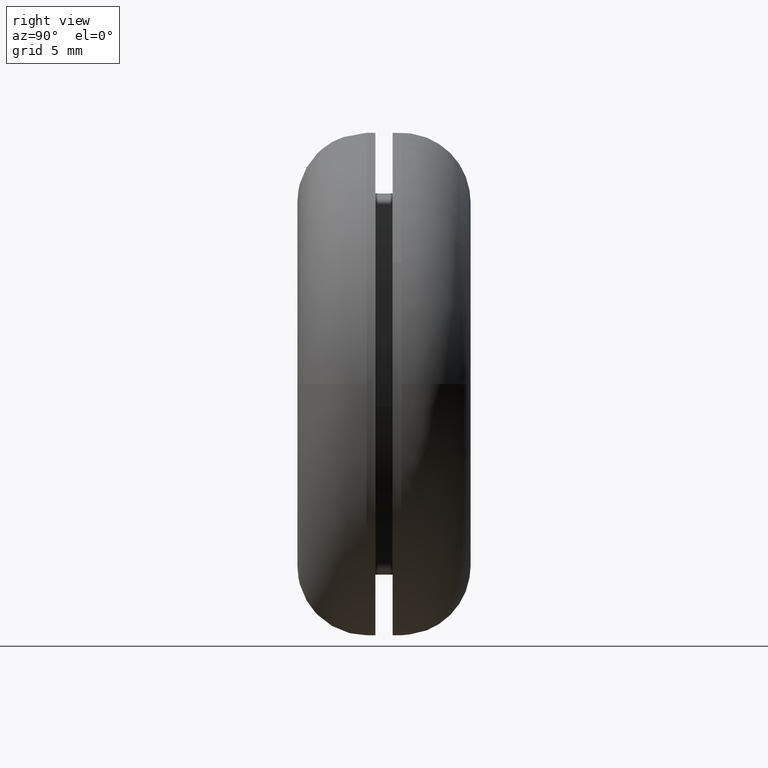
[diagram: clean part render]
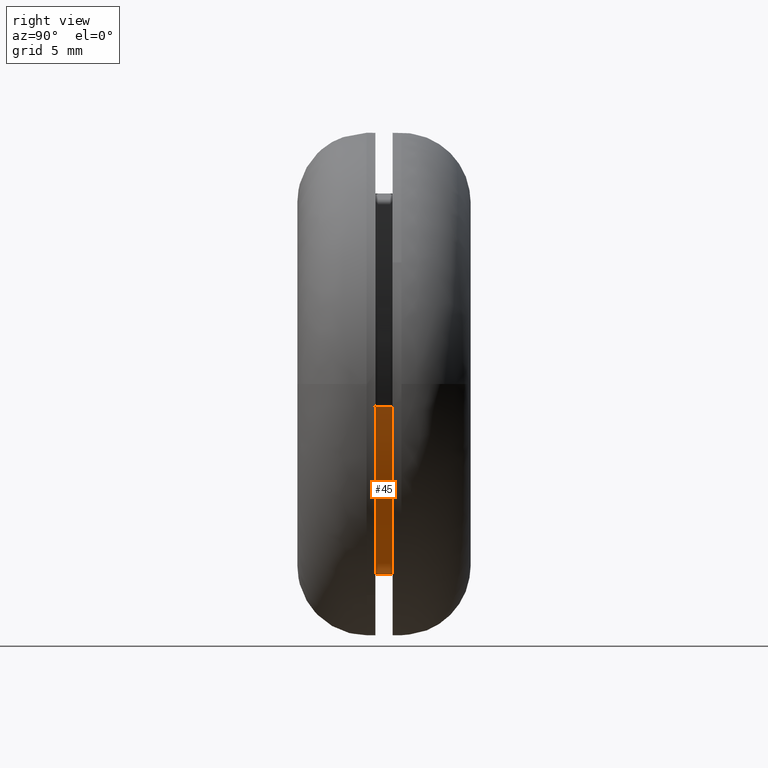
[diagram: same view with one face highlighted and labeled with its STEP entity id]
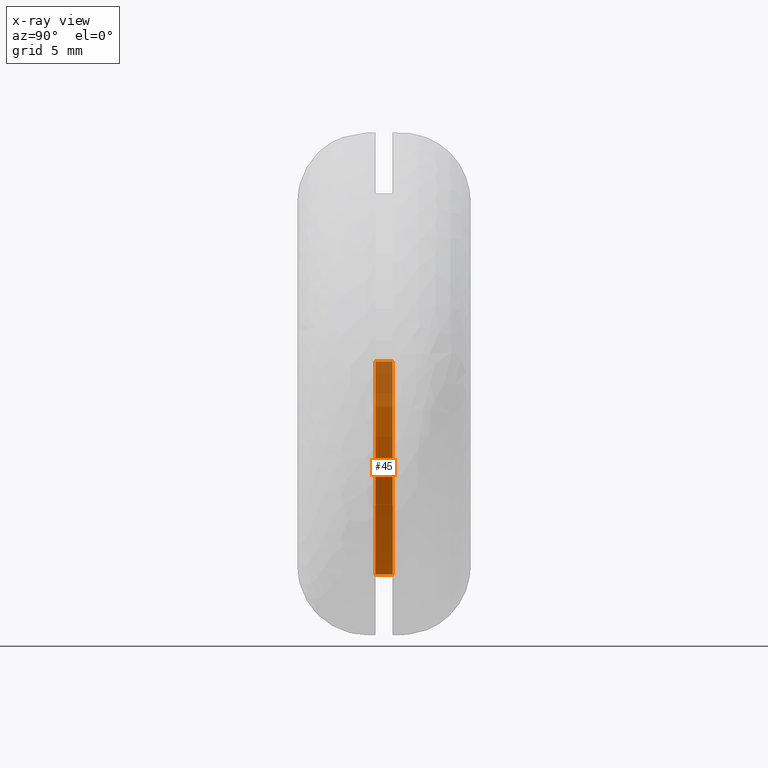
[diagram: x-ray of the same camera — body ghosted, the highlighted face saturated]
A machine part, right view. The second image highlights one B-rep face of the part: STEP entity #45.
The next image is the same camera in x-ray: the body ghosted, the highlighted face saturated — about 21% of this face is hidden behind the body in this view.
In plain terms, the highlighted cylindrical surface (partial cylindrical patch) has radius 11 mm, axis along (-0, 1, -0).
Its self-contained STEP definition (entity closure, byte-faithful):
#45=ADVANCED_FACE('',(#111),#110,.T.);
#110=CYLINDRICAL_SURFACE('',#252,1.10000000000E+001);
#111=FACE_OUTER_BOUND('',#253,.T.);
#249=CARTESIAN_POINT('',(-3.79912734607E-016,5.52500000000E+000,2.05053560369E-016));
#250=DIRECTION('',(-1.42013378390E-016,1.00000000000E+000,-1.19474352523E-015));
#251=DIRECTION('',(-9.93009526364E-001,-4.93038065763E-032,1.18034234657E-001));
#252=AXIS2_PLACEMENT_3D('',#249,#250,#251);
#253=EDGE_LOOP('',(#416,#417,#418,#419,#420,#421));
#416=ORIENTED_EDGE('',*,*,#493,.F.);
#417=ORIENTED_EDGE('',*,*,#495,.F.);
#418=ORIENTED_EDGE('',*,*,#514,.T.);
#419=ORIENTED_EDGE('',*,*,#499,.T.);
#420=ORIENTED_EDGE('',*,*,#501,.T.);
#421=ORIENTED_EDGE('',*,*,#515,.F.);
#493=EDGE_CURVE('',#562,#563,#564,.T.);
#495=EDGE_CURVE('',#570,#562,#577,.T.);
#499=EDGE_CURVE('',#604,#605,#606,.T.);
#501=EDGE_CURVE('',#605,#612,#619,.T.);
#514=EDGE_CURVE('',#570,#604,#709,.T.);
#515=EDGE_CURVE('',#563,#612,#715,.T.);
#562=VERTEX_POINT('',#901);
#563=VERTEX_POINT('',#902);
#564=CIRCLE('',#906,1.10000000000E+001);
#570=VERTEX_POINT('',#907);
#577=CIRCLE('',#915,1.10000000000E+001);
#604=VERTEX_POINT('',#931);
#605=VERTEX_POINT('',#932);
#606=CIRCLE('',#936,1.10000000000E+001);
#612=VERTEX_POINT('',#937);
#619=CIRCLE('',#945,1.10000000000E+001);
#709=(BOUNDED_CURVE() B_SPLINE_CURVE(1,(#1006,#1007),.UNSPECIFIED.,.F.,.F.) B_SPLINE_CURVE_WITH_KNOTS((2,2),(8.33333730703E-002,9.16666640476E-001),.UNSPECIFIED.) CURVE() GEOMETRIC_REPRESENTATION_ITEM() RATIONAL_B_SPLINE_CURVE((1.00000000000E+000,1.00000000000E+000)) REPRESENTATION_ITEM('') );
#715=(BOUNDED_CURVE() B_SPLINE_CURVE(1,(#1008,#1009),.UNSPECIFIED.,.F.,.F.) B_SPLINE_CURVE_WITH_KNOTS((2,2),(8.33333333442E-002,9.16666666667E-001),.UNSPECIFIED.) CURVE() GEOMETRIC_REPRESENTATION_ITEM() RATIONAL_B_SPLINE_CURVE((7.50000000000E-001,7.50000000000E-001)) REPRESENTATION_ITEM('') );
#901=CARTESIAN_POINT('',(-3.33066907388E-015,4.50000000001E+000,-1.10000000000E+001));
#902=CARTESIAN_POINT('',(1.09228802215E+001,4.50000000000E+000,-1.30026446011E+000));
#903=CARTESIAN_POINT('',(1.84829929140E-012,4.50000000000E+000,4.07407441116E-012));
#904=DIRECTION('',(-7.79609173207E-014,-1.00000000000E+000,-5.22486751144E-013));
#905=DIRECTION('',(-1.67948988050E-013,5.22486751144E-013,-1.00000000000E+000));
#906=AXIS2_PLACEMENT_3D('',#903,#904,#905);
#907=CARTESIAN_POINT('',(-1.09231047900E+001,4.50000000000E+000,1.29837658116E+000));
#912=CARTESIAN_POINT('',(1.84829929140E-012,4.50000000000E+000,4.07407441116E-012));
#913=DIRECTION('',(-7.79609173207E-014,-1.00000000000E+000,-5.22486751144E-013));
#914=DIRECTION('',(-1.67948988050E-013,5.22486751144E-013,-1.00000000000E+000));
#915=AXIS2_PLACEMENT_3D('',#912,#913,#914);
#931=CARTESIAN_POINT('',(-1.09231047900E+001,5.50000000000E+000,1.29837658116E+000));
#932=CARTESIAN_POINT('',(-7.54951656745E-015,5.50000000000E+000,-1.10000000000E+001));
#933=CARTESIAN_POINT('',(1.80655490567E-012,5.50000000000E+000,3.97282207132E-012));
#934=DIRECTION('',(-4.00972834440E-016,-1.00000000000E+000,-3.37336201448E-015));
#935=DIRECTION('',(-1.64562807825E-013,3.37336201448E-015,-1.00000000000E+000));
#936=AXIS2_PLACEMENT_3D('',#933,#934,#935);
#937=CARTESIAN_POINT('',(1.09228802215E+001,5.50000000000E+000,-1.30026446011E+000));
#942=CARTESIAN_POINT('',(1.80655490567E-012,5.50000000000E+000,3.97282207132E-012));
#943=DIRECTION('',(-4.00972834440E-016,-1.00000000000E+000,-3.37336201448E-015));
#944=DIRECTION('',(-1.64562807825E-013,3.37336201448E-015,-1.00000000000E+000));
#945=AXIS2_PLACEMENT_3D('',#942,#943,#944);
#1006=CARTESIAN_POINT('',(-1.09231047900E+001,4.50000004767E+000,1.29837658122E+000));
#1007=CARTESIAN_POINT('',(-1.09231047900E+001,5.49999996857E+000,1.29837658122E+000));
#1008=CARTESIAN_POINT('',(1.09231047900E+001,4.50000000000E+000,-1.29837658122E+000));
#1009=CARTESIAN_POINT('',(1.09231047900E+001,5.50000000000E+000,-1.29837658122E+000));